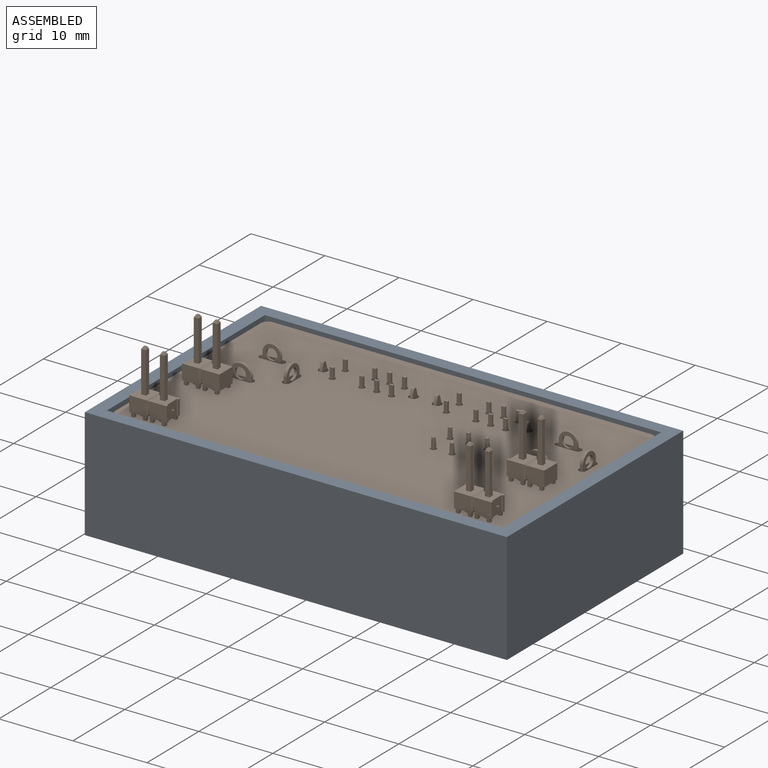
[diagram: assembled view]
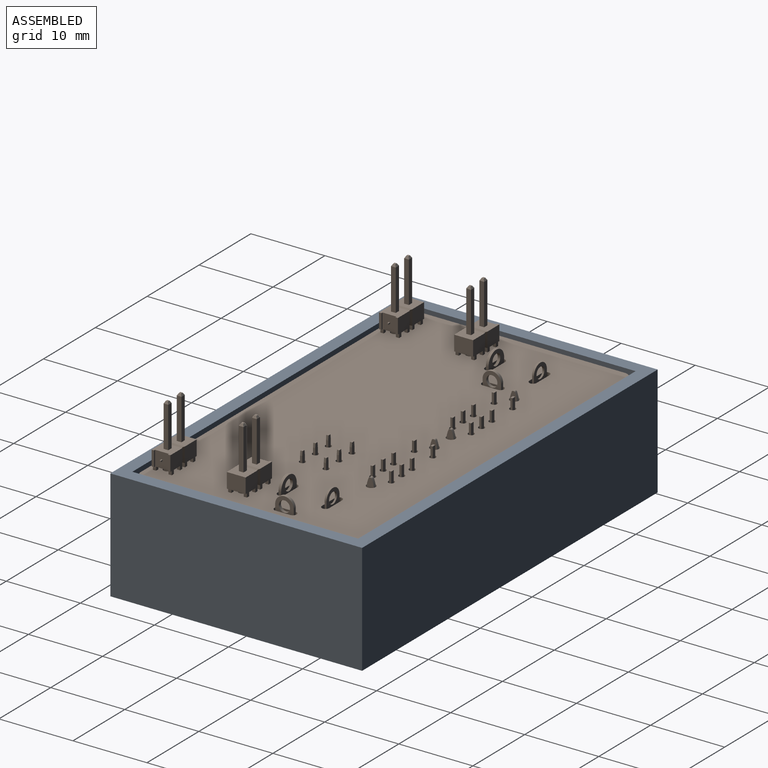
[diagram: assembled view, second angle]
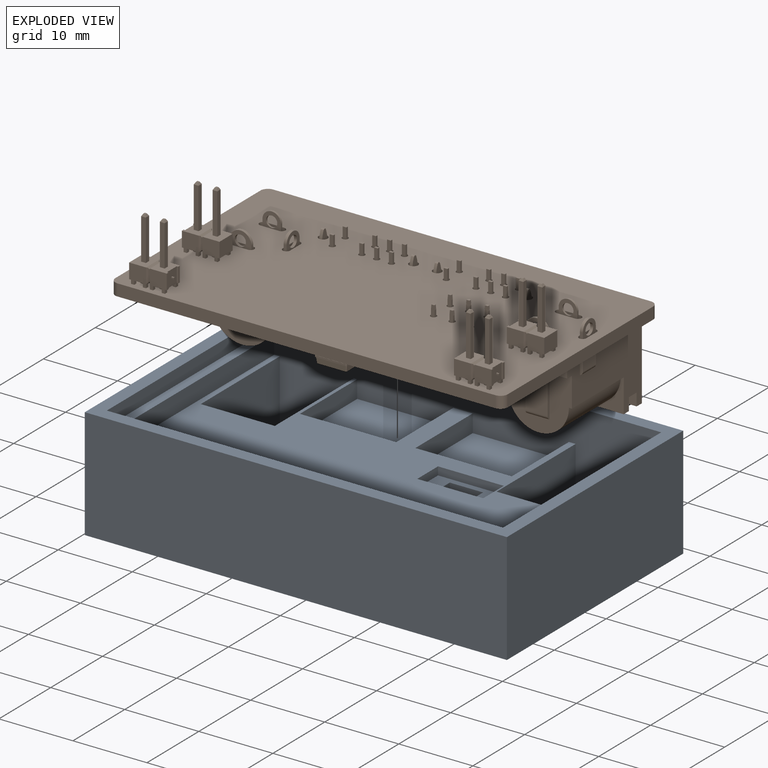
[diagram: exploded view]
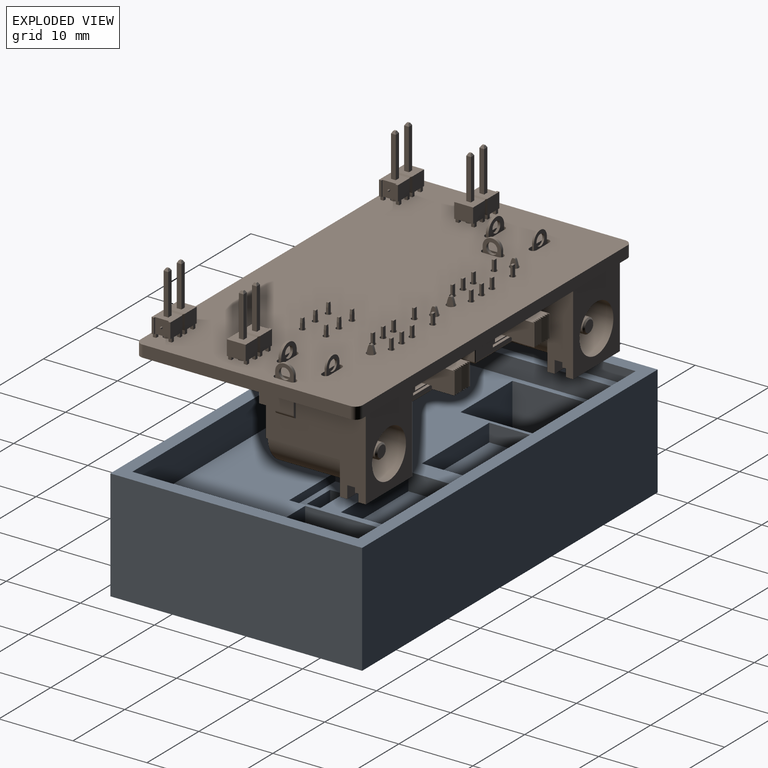
[diagram: exploded view, second angle]
FCSTD DOCUMENT  (FreeCAD 1.0R39109 (Git))
Label: Assembly2
License: All rights reserved
LicenseURL: https://en.wikipedia.org/wiki/All_rights_reserved
objects: App::Link×2, App::FeaturePython×1, Assembly::JointGroup×1, Assembly::AssemblyObject×1
EXTERNAL_REF file=solderJig.FCStd obj=Body
EXTERNAL_REF file=breadboard-power-supply.FCStd obj=Board_8d0f

FEATURE [App::Link] Body
  LinkedObject = -> <external solderJig.FCStd>#Body
FEATURE [App::FeaturePython] GroundedJoint  # Assembly grounded joint (typed FeaturePython)
  ObjectToGround = -> Body
FEATURE [Assembly::JointGroup] Joints
  Group = -> [GroundedJoint]
FEATURE [App::Link] breadboard_power_supply  label="breadboard-power-supply"
  LinkPlacement = pos=(126.522,105.006,12.9589) rot=(0,1,0;3.14159rad)
  LinkedObject = -> <external breadboard-power-supply.FCStd>#Board_8d0f
  Placement = pos=(126.522,105.006,12.9589) rot=(0,1,0;3.14159rad)
FEATURE [Assembly::AssemblyObject] Assembly
  Group = -> [Joints,Body,GroundedJoint,breadboard_power_supply]
  Origin = -> Origin
  Type = Assembly

RESOLVED EXTERNAL PARTS (link-assembly join: the EXTERNAL_REF files above that resolve inside this repo's crawl, each included once):
---- part breadboard-power-supply.FCStd = doc fcstd_21d6f16fc8de ----
FCSTD DOCUMENT  (FreeCAD 1.0R39109 (Git))
Label: breadboard-power-supply
License: All rights reserved
LicenseURL: https://en.wikipedia.org/wiki/All_rights_reserved
objects: Part::Feature×27, App::Part×13, App::Link×11, PartDesign::CoordinateSystem×1, Sketcher::SketchObject×1
note: 30 computed .brp shape members not serialized (recipe doc carries the construction recipe); baked Part::Feature solids carry a one-line shape summary decoded from their .brp

FEATURE [PartDesign::CoordinateSystem] Local_CS_8d0f
  AttacherType = Attacher::AttachEngine3D
  MapMode = 2
FEATURE [Part::Feature] Pcb_8d0f
  shape: bbox 53 x 30 x 1.6 mm, 80 faces (baked)
FEATURE [Sketcher::SketchObject] PCB_Sketch_8d0f
  ArcFitTolerance = 1e-06
  FullyConstrained = false
  MakeInternals = false
  sketch-geometry (8):
    g0: LineSegment StartX=101 StartY=-90 StartZ=0 EndX=152 EndY=-90 EndZ=0
    g1: LineSegment StartX=152 StartY=-120 StartZ=0 EndX=101 EndY=-120 EndZ=0
    g2: LineSegment StartX=100 StartY=-119 StartZ=0 EndX=100 EndY=-91 EndZ=0
    g3: LineSegment StartX=153 StartY=-91 StartZ=0 EndX=153 EndY=-119 EndZ=0
    g4: ArcOfCircle CenterX=152 CenterY=-91 CenterZ=0 NormalX=0 NormalY=0 NormalZ=-1 AngleXU=1.5708 Radius=0.999999 StartAngle=0 EndAngle=1.5708
    g5: ArcOfCircle CenterX=101 CenterY=-119 CenterZ=0 NormalX=0 NormalY=0 NormalZ=-1 AngleXU=-1.5708 Radius=0.999999 StartAngle=0 EndAngle=1.5708
    g6: ArcOfCircle CenterX=101 CenterY=-91 CenterZ=0 NormalX=0 NormalY=0 NormalZ=-1 AngleXU=-7.47076e-07 Radius=0.999999 StartAngle=0 EndAngle=1.5708
    g7: ArcOfCircle CenterX=152 CenterY=-119 CenterZ=0 NormalX=0 NormalY=0 NormalZ=-1 AngleXU=3.14159 Radius=0.999999 StartAngle=0 EndAngle=1.5708
  constraints (8):
    c: Coincident(g2,g5)
    c: Coincident(g2,g6)
    c: Coincident(g1,g5)
    c: Coincident(g0,g6)
    c: Coincident(g1,g7)
    c: Coincident(g0,g4)
    c: Coincident(g3,g7)
    c: Coincident(g3,g4)
FEATURE [App::Part] Board_Geoms_8d0f
  Group = -> [Pcb_8d0f,PCB_Sketch_8d0f]
  Origin = -> Origin
FEATURE [Part::Feature] Part__Feature  label="LF 736"
  Placement = pos=(1.69926,2.64276,4.10843) rot=(0,0,1;0rad)
  shape: bbox 1.62 x 1.275 x 1.5 mm, 25 faces (baked)
FEATURE [Part::Feature] Part__Feature001  label="LF 737"
  Placement = pos=(1.69926,2.64276,4.10843) rot=(0,0,1;0rad)
  shape: bbox 3.12 x 1.275 x 1.78 mm, 27 faces (baked)
FEATURE [App::Part] LF_736  label="LF 738"
  Group = -> [Part__Feature,Part__Feature001]
  Origin = -> Origin008
FEATURE [Part::Feature] Part__Feature002  label="Die 35mil 270um"
  Placement = pos=(1.69926,2.97276,4.10843) rot=(1,0,0;1.5708rad)
  shape: bbox 0.89 x 0.3 x 0.89 mm, 6 faces (baked)
FEATURE [Part::Feature] Part__Feature003  label="Clip553 670"
  Placement = pos=(1.69926,3.15276,4.10843) rot=(0,0,1;0rad)
  shape: bbox 2.25 x 0.704 x 1.5 mm, 32 faces (baked)
FEATURE [Part::Feature] Part__Feature004  label="Áã¼þ2^B1100"
  Placement = pos=(1.69926,2.64276,4.10843) rot=(-1,0,0;1.5708rad)
  shape: bbox 0.91 x 0.03 x 0.91 mm, 6 faces (baked)
FEATURE [Part::Feature] Part__Feature005  label="Áã¼þ2^B1101"
  Placement = pos=(1.69926,2.64276,4.10843) rot=(-1,0,0;1.5708rad)
  shape: bbox 0.46 x 0.03 x 0.46 mm, 6 faces (baked)
FEATURE [Part::Feature] Part__Feature006  label="Áã¼þ2^B1102"
  Placement = pos=(1.69926,2.64276,4.10843) rot=(-1,0,0;1.5708rad)
  shape: bbox 0.3846 x 0.205 x 1.2 mm, 8 faces (baked)
FEATURE [App::Part] ________2_B1100  label="Áã¼þ2^B1103"
  Group = -> [Part__Feature004,Part__Feature005,Part__Feature006]
  Origin = -> Origin009
FEATURE [Part::Feature] Part__Feature007  label="SMA Compound 736 553 670"
  Placement = pos=(-0.14074,2.63876,2.70843) rot=(-1,0,0;1.5708rad)
  shape: bbox 4.301 x 2 x 2.8 mm, 146 faces (baked)
FEATURE [App::Part] new_SMA_20R  label="D2_new SMA 20R_0952939a186b"
  Group = -> [LF_736,Part__Feature002,Part__Feature003,________2_B1100,Part__Feature007]
  Origin = -> Origin010
  Placement = pos=(128.39,-107.8,-1.6) rot=(0.57735,0.57735,0.57735;2.0944rad)
FEATURE [Part::Feature] Part__Feature008  label="EG1271--3DModel-STEP-520916"
  Placement = pos=(-0.95,3.3,1e-16) rot=(-1,0,0;1.5708rad)
  shape: bbox 8.5 x 8.5 x 3.6 mm, 203 faces (baked)
FEATURE [App::Part] EG1271  label="SW1_EG1271_2816c8904585"
  Group = -> [Part__Feature008]
  Origin = -> Origin011
  Placement = pos=(116,-105.3,0) rot=(1,0,0;1.5708rad)
FEATURE [Part::Feature] Part__Feature009  label="C0805C104K5RACTU"
  shape: bbox 2.3 x 0.98 x 1.55 mm, 58 faces (baked)
FEATURE [Part::Feature] Part__Feature010  label="C0805C104K5RACTU001"
  shape: bbox 0.2279 x 0.005 x 0.4313 mm, 19 faces (baked)
FEATURE [Part::Feature] Part__Feature011  label="C0805C104K5RACTU002"
  shape: bbox 0.2279 x 0.005 x 0.5256 mm, 25 faces (baked)
FEATURE [Part::Feature] Part__Feature012  label="C0805C104K5RACTU003"
  shape: bbox 0.2279 x 0.005 x 0.2743 mm, 13 faces (baked)
FEATURE [App::Part] C0805C104K5RACTU  label="C1_C0805C104K5RACTU004_20f41c0f8bfd"
  Group = -> [Part__Feature009,Part__Feature010,Part__Feature011,Part__Feature012]
  Origin = -> Origin012
  Placement = pos=(120.9,-103.75,0) rot=(0.57735,-0.57735,-0.57735;2.0944rad)
FEATURE [App::Link] D2_new_SMA_20R_0952939a186b_ln_  label="D1_new SMA 20R_7dfb9a78bb62"
  LinkPlacement = pos=(122.5,-108.69,-1.6) rot=(1,0,0;1.5708rad)
  LinkedObject = -> new_SMA_20R
  Placement = pos=(122.5,-108.69,-1.6) rot=(1,0,0;1.5708rad)
FEATURE [Part::Feature] Shape  label="SW3_EG2315_80b6656eb97f"
  Placement = pos=(134.2,-97.05,-3) rot=(0,0,1;3.14159rad)
  shape: bbox 12.6 x 10.3 x 7.8 mm, 150 faces (baked)
FEATURE [Part::Feature] Part__Feature013  label="RCS0805120RFKEA"
  shape: bbox 1.95 x 0.45 x 1.25 mm, 6 faces (baked)
FEATURE [Part::Feature] Part__Feature014  label="RCS0805120RFKEA001"
  shape: bbox 1.4 x 0.025 x 1.25 mm, 6 faces (baked)
FEATURE [Part::Feature] Part__Feature015  label="RCS0805120RFKEA002"
  shape: bbox 0.3 x 0.5 x 1.25 mm, 14 faces (baked)
FEATURE [Part::Feature] Part__Feature016  label="RCS0805120RFKEA003"
  shape: bbox 0.3 x 0.5 x 1.25 mm, 14 faces (baked)
FEATURE [App::Part] RCS0805120RFKEA  label="R2_RCS0805120RFKEA004_a3deb157f018"
  Group = -> [Part__Feature013,Part__Feature014,Part__Feature015,Part__Feature016]
  Origin = -> Origin013
  Placement = pos=(113.87,-101.6,0) rot=(0,0.707107,0.707107;3.14159rad)
FEATURE [App::Link] C1_C0805C104K5RACTU004_20f41c0f8bfd_ln_  label="C3_C0805C104K5RACTU004_ad2479d6b090"
  LinkPlacement = pos=(136.3,-104.05,0) rot=(0.57735,0.57735,0.57735;2.0944rad)
  LinkedObject = -> C0805C104K5RACTU
  Placement = pos=(136.3,-104.05,0) rot=(0.57735,0.57735,0.57735;2.0944rad)
FEATURE [App::Link] R2_RCS0805120RFKEA004_a3deb157f018_ln_  label="R1_RCS0805120RFKEA004_754ceaad8c13"
  LinkPlacement = pos=(135.5,-107.45,0) rot=(0.57735,0.57735,0.57735;2.0944rad)
  LinkedObject = -> RCS0805120RFKEA
  Placement = pos=(135.5,-107.45,0) rot=(0.57735,0.57735,0.57735;2.0944rad)
FEATURE [Part::Feature] Shape001  label="J1_CUI_DEVICES_PJ-002A_55e8efef0c78"
  Placement = pos=(106.5,-90.3,6.5) rot=(0.57735,0.57735,0.57735;2.0944rad)
  shape: bbox 9.4 x 14.4 x 14.5 mm, 57 faces (baked)
FEATURE [App::Link] SW3_EG2315_80b6656eb97f_ln_  label="SW2_EG2315_f7c61ab64d1e"
  LinkPlacement = pos=(118.8,-97.05,-3) rot=(0,0,1;3.14159rad)
  LinkedObject = -> Shape
  Placement = pos=(118.8,-97.05,-3) rot=(0,0,1;3.14159rad)
FEATURE [Part::Feature] Part__Feature017  label="BODY-SOT"
  Placement = pos=(0,0,0.7874) rot=(0.57735,-0.57735,-0.57735;2.0944rad)
  shape: bbox 3.5 x 6.5 x 1.6 mm, 14 faces (baked)
FEATURE [Part::Feature] Part__Feature018  label="LEAD-SOT"
  Placement = pos=(-2.7498,-2.2438,0.25) rot=(0.57735,-0.57735,-0.57735;2.0944rad)
  shape: bbox 1.75 x 0.75 x 0.7874 mm, 14 faces (baked)
FEATURE [Part::Feature] Part__Feature019  label="LEAD-SOT001"
  Placement = pos=(-2.7498,0.0562,0.25) rot=(0.57735,-0.57735,-0.57735;2.0944rad)
  shape: bbox 1.75 x 0.75 x 0.7874 mm, 14 faces (baked)
FEATURE [Part::Feature] Part__Feature020  label="LEAD-SOT002"
  Placement = pos=(-2.7498,2.3562,0.25) rot=(0.57735,-0.57735,-0.57735;2.0944rad)
  shape: bbox 1.75 x 0.75 x 0.7874 mm, 14 faces (baked)
FEATURE [Part::Feature] Part__Feature021  label="LEAD-SOT-WIDE"
  Placement = pos=(2.7498,0.0026,0.25) rot=(0.57735,0.57735,0.57735;2.0944rad)
  shape: bbox 1.75 x 3 x 0.7874 mm, 14 faces (baked)
FEATURE [App::Part] DCY0004A_ASM  label="U1_DCY0004A_ASM_2dbe2f4dbc05"
  Group = -> [Part__Feature017,Part__Feature018,Part__Feature019,Part__Feature020,Part__Feature021]
  Origin = -> Origin014
  Placement = pos=(126.5,-105.8,0) rot=(0,0,-1;1.5708rad)
FEATURE [App::Link] R2_RCS0805120RFKEA004_a3deb157f018_ln_001  label="R3_RCS0805120RFKEA004_74bbc2b843f3"
  LinkPlacement = pos=(117.73,-101.6,0) rot=(1,0,0;1.5708rad)
  LinkedObject = -> RCS0805120RFKEA
  Placement = pos=(117.73,-101.6,0) rot=(1,0,0;1.5708rad)
FEATURE [App::Link] J1_CUI_DEVICES_PJ_002A_55e8efef0c78_ln_  label="J2_CUI_DEVICES_PJ-002A_d9c951ac5020"
  LinkPlacement = pos=(146.5,-90.3,6.5) rot=(0.57735,0.57735,0.57735;2.0944rad)
  LinkedObject = -> Shape001
  Placement = pos=(146.5,-90.3,6.5) rot=(0.57735,0.57735,0.57735;2.0944rad)
FEATURE [App::Link] C1_C0805C104K5RACTU004_20f41c0f8bfd_ln_001  label="C2_C0805C104K5RACTU004_f27700a97261"
  LinkPlacement = pos=(131.65,-110.7,0) rot=(0,0.707107,0.707107;3.14159rad)
  LinkedObject = -> C0805C104K5RACTU
  Placement = pos=(131.65,-110.7,0) rot=(0,0.707107,0.707107;3.14159rad)
FEATURE [App::Link] D2_new_SMA_20R_0952939a186b_ln_001  label="D3_new SMA 20R_0e3b2a965611"
  LinkPlacement = pos=(122.5,-112.69,-1.6) rot=(1,0,0;1.5708rad)
  LinkedObject = -> new_SMA_20R
  Placement = pos=(122.5,-112.69,-1.6) rot=(1,0,0;1.5708rad)
FEATURE [App::Part] Top_8d0f
  Group = -> [new_SMA_20R,EG1271,C0805C104K5RACTU,D2_new_SMA_20R_0952939a186b_ln_,Shape,RCS0805120RFKEA,C1_C0805C104K5RACTU004_20f41c0f8bfd_ln_,R2_RCS0805120RFKEA004_a3deb157f018_ln_,Shape001,SW3_EG2315_80b6656eb97f_ln_,DCY0004A_ASM,R2_RCS0805120RFKEA004_a3deb157f018_ln_001,J1_CUI_DEVICES_PJ_002A_55e8efef0c78_ln_,C1_C0805C104K5RACTU004_20f41c0f8bfd_ln_001,D2_new_SMA_20R_0952939a186b_ln_001]
  Origin = -> Origin003
FEATURE [Part::Feature] Part__Feature022  label="TSW-102-07-F-S_body"
  shape: bbox 5.207 x 2.54 x 2.54 mm, 69 faces (baked)
FEATURE [Part::Feature] Part__Feature023  label="T-1S6-07-TSW-1-07-2-S"
  Placement = pos=(0,-2.54,0) rot=(0,0,1;0rad)
  shape: bbox 3.429 x 10.92 x 0.889 mm, 38 faces (baked)
FEATURE [App::Part] TSW_102_07_F_S  label="J6_TSW-102-07-F-S_af2df57303ab"
  Group = -> [Part__Feature022,Part__Feature023]
  Origin = -> Origin015
  Placement = pos=(148.43,-117.97,-1.6) rot=(-1,0,0;1.5708rad)
FEATURE [App::Link] J6_TSW_102_07_F_S_af2df57303ab_ln_  label="J3_TSW-102-07-F-S_91d19b5af423"
  LinkPlacement = pos=(104.57,-107.81,-1.6) rot=(0,0.707107,-0.707107;3.14159rad)
  LinkedObject = -> TSW_102_07_F_S
  Placement = pos=(104.57,-107.81,-1.6) rot=(0,0.707107,-0.707107;3.14159rad)
FEATURE [App::Link] J6_TSW_102_07_F_S_af2df57303ab_ln_001  label="J4_TSW-102-07-F-S_3f57c38ca013"
  LinkPlacement = pos=(104.57,-117.97,-1.6) rot=(-1,0,0;1.5708rad)
  LinkedObject = -> TSW_102_07_F_S
  Placement = pos=(104.57,-117.97,-1.6) rot=(-1,0,0;1.5708rad)
FEATURE [App::Link] J6_TSW_102_07_F_S_af2df57303ab_ln_002  label="J5_TSW-102-07-F-S_f7e907fcc812"
  LinkPlacement = pos=(148.43,-107.81,-1.6) rot=(0,0.707107,-0.707107;3.14159rad)
  LinkedObject = -> TSW_102_07_F_S
  Placement = pos=(148.43,-107.81,-1.6) rot=(0,0.707107,-0.707107;3.14159rad)
FEATURE [App::Part] Bot_8d0f
  Group = -> [TSW_102_07_F_S,J6_TSW_102_07_F_S_af2df57303ab_ln_,J6_TSW_102_07_F_S_af2df57303ab_ln_001,J6_TSW_102_07_F_S_af2df57303ab_ln_002]
  Origin = -> Origin004
FEATURE [App::Part] Step_Models_8d0f
  Group = -> [Top_8d0f,Bot_8d0f]
  Origin = -> Origin002
FEATURE [App::Part] Board_8d0f  label="breadboard-power-supply"
  Group = -> [Local_CS_8d0f,Board_Geoms_8d0f,Step_Models_8d0f]
  Origin = -> Origin001
---- part solderJig.FCStd = doc fcstd_6d648a38eaf0 ----
FCSTD DOCUMENT  (FreeCAD 1.0R39109 (Git))
Label: solderJig
License: All rights reserved
LicenseURL: https://en.wikipedia.org/wiki/All_rights_reserved
objects: Measure::MeasurePython×9, Sketcher::SketchObject×8, PartDesign::Pocket×7, PartDesign::Pad×1, App::DocumentObjectGroup×1, PartDesign::Body×1
note: 41 computed .brp shape members not serialized (recipe doc carries the construction recipe); baked Part::Feature solids carry a one-line shape summary decoded from their .brp

FEATURE [Sketcher::SketchObject] Sketch
  ArcFitTolerance = 1e-06
  AttachmentSupport = -> [XY_Plane]
  FullyConstrained = true
  MakeInternals = false
  MapMode = 5
  sketch-geometry (4):
    g0: LineSegment StartX=-28.5 StartY=17 StartZ=0 EndX=-28.5 EndY=-17 EndZ=0
    g1: LineSegment StartX=-28.5 StartY=-17 StartZ=0 EndX=28.5 EndY=-17 EndZ=0
    g2: LineSegment StartX=28.5 StartY=-17 StartZ=0 EndX=28.5 EndY=17 EndZ=0
    g3: LineSegment StartX=28.5 StartY=17 StartZ=0 EndX=-28.5 EndY=17 EndZ=0
  constraints (12):
    c: Coincident(g0,g1)
    c: Coincident(g1,g2)
    c: Coincident(g2,g3)
    c: Coincident(g3,g0)
    c: Vertical(g0)
    c: Vertical(g2)
    c: Horizontal(g1)
    c: Horizontal(g3)
    c: DistanceX(g3,g3) = 57
    c: DistanceY(g0,g0) = 34
    c: Distance(g-1,g3) = 17
    c: Distance(g0,g-2) = 28.5
FEATURE [PartDesign::Pad] Pad
  Direction = (0,0,1)
  Length = 15
  Length2 = 10
  Profile = -> Sketch
  ReferenceAxis = -> Sketch [N_Axis]
  Refine = true
  Suppressed = false
  Type = 0
FEATURE [Sketcher::SketchObject] Sketch001
  ArcFitTolerance = 1e-06
  AttachmentSupport = -> [Pad]
  FullyConstrained = true
  MakeInternals = false
  MapMode = 5
  Placement = pos=(0,0,15) rot=(0,0,1;0rad)
  sketch-geometry (4):
    g0: LineSegment StartX=-26.75 StartY=15.25 StartZ=0 EndX=-26.75 EndY=-15.25 EndZ=0
    g1: LineSegment StartX=-26.75 StartY=-15.25 StartZ=0 EndX=26.75 EndY=-15.25 EndZ=0
    g2: LineSegment StartX=26.75 StartY=-15.25 StartZ=0 EndX=26.75 EndY=15.25 EndZ=0
    g3: LineSegment StartX=26.75 StartY=15.25 StartZ=0 EndX=-26.75 EndY=15.25 EndZ=0
  constraints (12):
    c: Coincident(g0,g1)
    c: Coincident(g1,g2)
    c: Coincident(g2,g3)
    c: Coincident(g3,g0)
    c: Vertical(g0)
    c: Vertical(g2)
    c: Horizontal(g1)
    c: Horizontal(g3)
    c: DistanceX(g3,g3) = 53.5
    c: DistanceY(g0,g0) = 30.5
    c: Distance(g-1,g3) = 15.25
    c: Distance(g-2,g0) = 26.75
FEATURE [PartDesign::Pocket] Pocket
  BaseFeature = -> Pad
  Direction = (0,0,-1)
  Length = 2
  Length2 = 5
  Profile = -> Sketch001
  ReferenceAxis = -> Sketch001 [N_Axis]
  Refine = true
  Suppressed = false
  Type = 0
FEATURE [Sketcher::SketchObject] Sketch002
  ArcFitTolerance = 1e-06
  AttachmentSupport = -> [Pocket]
  FullyConstrained = true
  MakeInternals = false
  MapMode = 5
  Placement = pos=(0,0,13) rot=(0,0,1;0rad)
  sketch-geometry (8):
    g0: LineSegment StartX=-24.75 StartY=15.25 StartZ=0 EndX=-24.75 EndY=1.8e-15 EndZ=0
    g1: LineSegment StartX=-24.75 StartY=1.8e-15 StartZ=0 EndX=-14.75 EndY=1.8e-15 EndZ=0
    g2: LineSegment StartX=-14.75 StartY=1.8e-15 StartZ=0 EndX=-14.75 EndY=15.25 EndZ=0
    g3: LineSegment StartX=-14.75 StartY=15.25 StartZ=0 EndX=-24.75 EndY=15.25 EndZ=0
    g4: LineSegment StartX=15.2 StartY=15.25 StartZ=0 EndX=15.2 EndY=1.8e-15 EndZ=0
    g5: LineSegment StartX=15.2 StartY=1.8e-15 StartZ=0 EndX=25.2 EndY=1.8e-15 EndZ=0
    g6: LineSegment StartX=25.2 StartY=1.8e-15 StartZ=0 EndX=25.2 EndY=15.25 EndZ=0
    g7: LineSegment StartX=25.2 StartY=15.25 StartZ=0 EndX=15.2 EndY=15.25 EndZ=0
  constraints (24):
    c: Coincident(g0,g1)
    c: Coincident(g1,g2)
    c: Coincident(g2,g3)
    c: Coincident(g3,g0)
    c: Vertical(g0)
    c: Vertical(g2)
    c: Horizontal(g1)
    c: Horizontal(g3)
    c: DistanceX(g3,g3) = 10
    c: DistanceY(g2,g2) = 15.25
    c: Distance(g-1,g3) = 15.25
    c: Coincident(g4,g5)
    c: Coincident(g5,g6)
    c: Coincident(g6,g7)
    c: Coincident(g7,g4)
    c: Vertical(g4)
    c: Vertical(g6)
    c: Horizontal(g5)
    c: Horizontal(g7)
    c: DistanceY(g4,g4) = 15.25
    c: DistanceX(g5,g5) = 10
    c: Distance(g-1,g7) = 15.25
    c: Distance(g-2,g2) = 14.75
    c: Distance(g-2,g4) = 15.2
FEATURE [PartDesign::Pocket] Pocket001
  BaseFeature = -> Pocket
  Direction = (0,0,-1)
  Length = 10.7
  Length2 = 5
  Profile = -> Sketch002
  ReferenceAxis = -> Sketch002 [N_Axis]
  Refine = true
  Suppressed = false
  Type = 0
FEATURE [Sketcher::SketchObject] Sketch003
  ArcFitTolerance = 1e-06
  AttachmentSupport = -> [Pocket001]
  FullyConstrained = true
  MakeInternals = false
  MapMode = 5
  Placement = pos=(0,0,2.3) rot=(0,0,1;0rad)
  sketch-geometry (8):
    g0: LineSegment StartX=-24.75 StartY=11.05 StartZ=0 EndX=-14.75 EndY=11.05 EndZ=0
    g1: LineSegment StartX=-14.75 StartY=11.05 StartZ=0 EndX=-14.75 EndY=15.25 EndZ=0
    g2: LineSegment StartX=-14.75 StartY=15.25 StartZ=0 EndX=-24.75 EndY=15.25 EndZ=0
    g3: LineSegment StartX=-24.75 StartY=15.25 StartZ=0 EndX=-24.75 EndY=11.05 EndZ=0
    g4: LineSegment StartX=15.2 StartY=15.25 StartZ=0 EndX=15.2 EndY=11.05 EndZ=0
    g5: LineSegment StartX=15.2 StartY=11.05 StartZ=0 EndX=25.2 EndY=11.05 EndZ=0
    g6: LineSegment StartX=25.2 StartY=11.05 StartZ=0 EndX=25.2 EndY=15.25 EndZ=0
    g7: LineSegment StartX=25.2 StartY=15.25 StartZ=0 EndX=15.2 EndY=15.25 EndZ=0
  constraints (24):
    c: Coincident(g0,g1)
    c: Coincident(g1,g2)
    c: Coincident(g2,g3)
    c: Coincident(g3,g0)
    c: Horizontal(g0)
    c: Horizontal(g2)
    c: Vertical(g1)
    c: Vertical(g3)
    c: DistanceX(g0,g0) = 10
    c: DistanceY(g1,g1) = 4.2
    c: Distance(g-1,g0) = 11.05
    c: Coincident(g4,g5)
    c: Coincident(g5,g6)
    c: Coincident(g6,g7)
    c: Coincident(g7,g4)
    c: Vertical(g4)
    c: Vertical(g6)
    c: Horizontal(g5)
    c: Horizontal(g7)
    c: DistanceX(g5,g5) = 10
    c: Distance(g5,g7) = 4.2
    c: Distance(g-1,g5) = 11.05
    c: Distance(g-2,g1) = 14.75
    c: Distance(g-2,g4) = 15.2
FEATURE [PartDesign::Pocket] Pocket002
  BaseFeature = -> Pocket001
  Direction = (0,0,-1)
  Length = 0.45
  Length2 = 5
  Profile = -> Sketch003
  ReferenceAxis = -> Sketch003 [N_Axis]
  Refine = true
  Suppressed = false
  Type = 0
FEATURE [Sketcher::SketchObject] Sketch004
  ArcFitTolerance = 1e-06
  AttachmentSupport = -> [Pocket002]
  FullyConstrained = true
  MakeInternals = false
  MapMode = 5
  Placement = pos=(0,0,13) rot=(0,0,1;0rad)
  sketch-geometry (8):
    g0: LineSegment StartX=-14.3 StartY=15.25 StartZ=0 EndX=-14.3 EndY=4.2 EndZ=0
    g1: LineSegment StartX=-14.3 StartY=4.2 StartZ=0 EndX=-1.3 EndY=4.2 EndZ=0
    g2: LineSegment StartX=-1.3 StartY=4.2 StartZ=0 EndX=-1.3 EndY=15.25 EndZ=0
    g3: LineSegment StartX=-1.3 StartY=15.25 StartZ=0 EndX=-14.3 EndY=15.25 EndZ=0
    g4: LineSegment StartX=1.3 StartY=15.25 StartZ=0 EndX=1.3 EndY=4.2 EndZ=0
    g5: LineSegment StartX=1.3 StartY=4.2 StartZ=0 EndX=14.3 EndY=4.2 EndZ=0
    g6: LineSegment StartX=14.3 StartY=4.2 StartZ=0 EndX=14.3 EndY=15.25 EndZ=0
    g7: LineSegment StartX=14.3 StartY=15.25 StartZ=0 EndX=1.3 EndY=15.25 EndZ=0
  constraints (24):
    c: Coincident(g0,g1)
    c: Coincident(g1,g2)
    c: Coincident(g2,g3)
    c: Coincident(g3,g0)
    c: Vertical(g0)
    c: Vertical(g2)
    c: Horizontal(g1)
    c: Horizontal(g3)
    c: DistanceX(g3,g3) = 13
    c: Distance(g-1,g1) = 4.2
    c: Distance(g-1,g3) = 15.25
    c: Distance(g-1,g2) = 1.3
    c: Coincident(g4,g5)
    c: Coincident(g5,g6)
    c: Coincident(g6,g7)
    c: Coincident(g7,g4)
    c: Vertical(g4)
    c: Vertical(g6)
    c: Horizontal(g5)
    c: Horizontal(g7)
    c: DistanceX(g5,g5) = 13
    c: Distance(g-1,g5) = 4.2
    c: Distance(g-1,g7) = 15.25
    c: Distance(g-2,g4) = 1.3
FEATURE [PartDesign::Pocket] Pocket003
  BaseFeature = -> Pocket002
  Direction = (0,0,-1)
  Length = 4.9
  Length2 = 5
  Profile = -> Sketch004
  ReferenceAxis = -> Sketch004 [N_Axis]
  Refine = true
  Suppressed = false
  Type = 0
FEATURE [Sketcher::SketchObject] Sketch005
  ArcFitTolerance = 1e-06
  AttachmentSupport = -> [Pocket003]
  FullyConstrained = true
  MakeInternals = false
  MapMode = 5
  Placement = pos=(0,0,13) rot=(0,0,1;0rad)
  sketch-geometry (4):
    g0: LineSegment StartX=6.1 StartY=1.7 StartZ=0 EndX=6.1 EndY=-2.3 EndZ=0
    g1: LineSegment StartX=6.1 StartY=-2.3 StartZ=0 EndX=15 EndY=-2.3 EndZ=0
    g2: LineSegment StartX=15 StartY=-2.3 StartZ=0 EndX=15 EndY=1.7 EndZ=0
    g3: LineSegment StartX=15 StartY=1.7 StartZ=0 EndX=6.1 EndY=1.7 EndZ=0
  constraints (12):
    c: Coincident(g0,g1)
    c: Coincident(g1,g2)
    c: Coincident(g2,g3)
    c: Coincident(g3,g0)
    c: Vertical(g0)
    c: Vertical(g2)
    c: Horizontal(g1)
    c: Horizontal(g3)
    c: DistanceY(g2,g2) = 4
    c: DistanceX(g3,g3) = 8.9
    c: Distance(g-1,g1) = 2.3
    c: Distance(g-2,g0) = 6.1
FEATURE [PartDesign::Pocket] Pocket004
  BaseFeature = -> Pocket003
  Direction = (0,0,-1)
  Length = 3.6
  Length2 = 5
  Profile = -> Sketch005
  ReferenceAxis = -> Sketch005 [N_Axis]
  Refine = true
  Suppressed = false
  Type = 0
FEATURE [Sketcher::SketchObject] Sketch006
  ArcFitTolerance = 1e-06
  AttachmentSupport = -> [Pocket004]
  FullyConstrained = true
  MakeInternals = false
  MapMode = 5
  Placement = pos=(0,0,9.4) rot=(0,0,1;0rad)
  sketch-geometry (4):
    g0: LineSegment StartX=8.25 StartY=0.9 StartZ=0 EndX=8.25 EndY=-1.5 EndZ=0
    g1: LineSegment StartX=8.25 StartY=-1.5 StartZ=0 EndX=12.75 EndY=-1.5 EndZ=0
    g2: LineSegment StartX=12.75 StartY=-1.5 StartZ=0 EndX=12.75 EndY=0.9 EndZ=0
    g3: LineSegment StartX=12.75 StartY=0.9 StartZ=0 EndX=8.25 EndY=0.9 EndZ=0
  constraints (12):
    c: Coincident(g0,g1)
    c: Coincident(g1,g2)
    c: Coincident(g2,g3)
    c: Coincident(g3,g0)
    c: Vertical(g0)
    c: Vertical(g2)
    c: Horizontal(g1)
    c: Horizontal(g3)
    c: DistanceY(g0,g0) = 2.4
    c: DistanceX(g3,g3) = 4.5
    c: Distance(g-1,g1) = 1.5
    c: Distance(g-2,g0) = 8.25
FEATURE [PartDesign::Pocket] Pocket005
  BaseFeature = -> Pocket004
  Direction = (0,0,-1)
  Length = 2.1
  Length2 = 5
  Profile = -> Sketch006
  ReferenceAxis = -> Sketch006 [N_Axis]
  Refine = true
  Suppressed = false
  Type = 0
FEATURE [App::DocumentObjectGroup] Group
FEATURE [Sketcher::SketchObject] Sketch007
  ArcFitTolerance = 1e-06
  AttachmentSupport = -> [Pocket005]
  FullyConstrained = true
  MakeInternals = false
  MapMode = 5
  Placement = pos=(0,0,13) rot=(0,0,1;0rad)
  sketch-geometry (4):
    g0: LineSegment StartX=-25.5 StartY=15.25 StartZ=0 EndX=-25.5 EndY=-15.25 EndZ=0
    g1: LineSegment StartX=-25.5 StartY=-15.25 StartZ=0 EndX=25.5 EndY=-15.25 EndZ=0
    g2: LineSegment StartX=25.5 StartY=-15.25 StartZ=0 EndX=25.5 EndY=15.25 EndZ=0
    g3: LineSegment StartX=25.5 StartY=15.25 StartZ=0 EndX=-25.5 EndY=15.25 EndZ=0
  constraints (12):
    c: Coincident(g0,g1)
    c: Coincident(g1,g2)
    c: Coincident(g2,g3)
    c: Coincident(g3,g0)
    c: Vertical(g0)
    c: Vertical(g2)
    c: Horizontal(g1)
    c: Horizontal(g3)
    c: DistanceX(g3,g3) = 51
    c: DistanceY(g0,g0) = 30.5
    c: Distance(g-1,g3) = 15.25
    c: Distance(g-2,g0) = 25.5
FEATURE [PartDesign::Pocket] Pocket006
  BaseFeature = -> Pocket005
  Direction = (0,0,-1)
  Length = 2.5
  Length2 = 5
  Profile = -> Sketch007
  ReferenceAxis = -> Sketch007 [N_Axis]
  Refine = true
  Suppressed = false
  Type = 0
FEATURE [PartDesign::Body] Body
  AllowCompound = false
  Group = -> [Sketch,Pad,Sketch001,Pocket,Sketch002,Pocket001,Sketch003,Pocket002,Sketch004,Pocket003,Sketch005,Pocket004,Sketch006,Pocket005,Sketch007,Pocket006]
  Origin = -> Origin
  Tip = -> Pocket006
FEATURE [Measure::MeasurePython] Center_of_Mass  label="Center_of_Mass: "  # WARN: FeaturePython — macro-defined, semantics opaque (R4)
  Element = -> Body [Sketch002.]
  Placement = pos=(-20,7.45,13) rot=(0,0,1;0rad)
  Result = (-20,7.45,13)
FEATURE [Measure::MeasurePython] Center_of_Mass001  label="Center_of_Mass001: "  # WARN: FeaturePython — macro-defined, semantics opaque (R4)
  Element = -> Body [Pocket002.]
  Placement = pos=(-0.0330054,-1.1278,6.54479) rot=(0,0,1;0rad)
  Result = (-0.0330054,-1.1278,6.54479)
FEATURE [Measure::MeasurePython] Center_of_Mass002  label="Center_of_Mass002: COM
X: -8.90 mm
Y: 9.85 mm
Z: 13.00 mm"  # WARN: FeaturePython — macro-defined, semantics opaque (R4)
  Element = -> Body [Sketch004.]
  Placement = pos=(-9,9.725,13) rot=(0,0,1;0rad)
  Result = (-9,9.725,13)
FEATURE [Measure::MeasurePython] Center_of_Mass003  label="Center_of_Mass003: COM
X: -8.90 mm
Y: 9.72 mm
Z: 13.00 mm"  # WARN: FeaturePython — macro-defined, semantics opaque (R4)
  Element = -> Body [Sketch004.]
  Placement = pos=(-9,9.725,13) rot=(0,0,1;0rad)
  Result = (-9,9.725,13)
FEATURE [Measure::MeasurePython] Center_of_Mass004  label="Center_of_Mass004: COM
X: -9.00 mm
Y: 9.72 mm
Z: 13.00 mm"  # WARN: FeaturePython — macro-defined, semantics opaque (R4)
  Element = -> Body [Sketch004.]
  Placement = pos=(-9,9.725,13) rot=(0,0,1;0rad)
  Result = (-9,9.725,13)
FEATURE [Measure::MeasurePython] Center_of_Mass005  label="Center_of_Mass005: COM
X: -10.75 mm
Y: -4.55 mm
Z: 13.00 mm"  # WARN: FeaturePython — macro-defined, semantics opaque (R4)
  Element = -> Body [Sketch005.]
  Placement = pos=(10.55,-0.3,13) rot=(0,0,1;0rad)
  Result = (10.55,-0.3,13)
FEATURE [Measure::MeasurePython] Center_of_Mass006  label="Center_of_Mass006: COM
X: -10.25 mm
Y: -0.55 mm
Z: 13.00 mm"  # WARN: FeaturePython — macro-defined, semantics opaque (R4)
  Element = -> Body [Sketch005.]
  Placement = pos=(10.55,-0.3,13) rot=(0,0,1;0rad)
  Result = (10.55,-0.3,13)
FEATURE [Measure::MeasurePython] Center_of_Mass007  label="Center_of_Mass007: COM
X: -12.44 mm
Y: -0.71 mm
Z: 9.40 mm"  # WARN: FeaturePython — macro-defined, semantics opaque (R4)
  Element = -> Body [Sketch006.]
  Placement = pos=(10.5,-0.3,9.4) rot=(0,0,1;0rad)
  Result = (10.5,-0.3,9.4)
FEATURE [Measure::MeasurePython] Center_of_Mass008  label="Center_of_Mass008: COM
X: -0.00 mm
Y: 0.00 mm
Z: 15.00 mm"  # WARN: FeaturePython — macro-defined, semantics opaque (R4)
  Element = -> Body [Pocket.Sketch001.]
  Placement = pos=(-3.4e-15,0,15) rot=(0,0,1;0rad)
  Result = (-3.4e-15,0,15)
